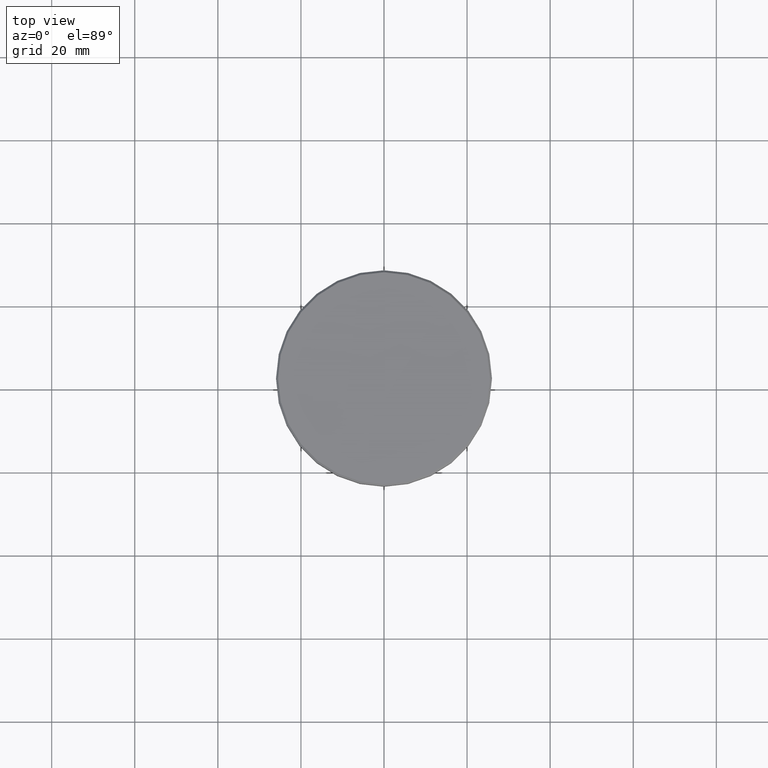
[diagram: clean part render]
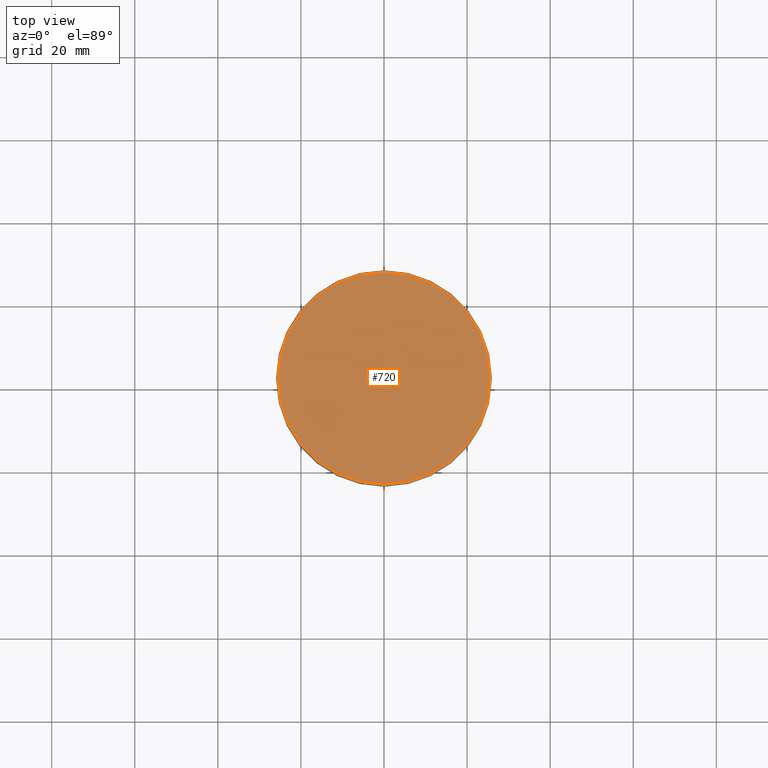
[diagram: same view with one face highlighted and labeled with its STEP entity id]
A machine part, top view. The second image highlights one B-rep face of the part: STEP entity #720.
In plain terms, the highlighted planar face has unit normal (0, -0, 1).
Its self-contained STEP definition (entity closure, byte-faithful):
#28 = AXIS2_PLACEMENT_3D ( 'NONE', #360, #500, #925 ) ;
#191 = ORIENTED_EDGE ( 'NONE', *, *, #1099, .T. ) ;
#360 = CARTESIAN_POINT ( 'NONE',  ( 0.000000000000000000, 0.000000000000000000, 0.000000000000000000 ) ) ;
#423 = DIRECTION ( 'NONE',  ( 1.000000000000000000, 0.000000000000000000, 0.000000000000000000 ) ) ;
#429 = DIRECTION ( 'NONE',  ( 1.000000000000000000, 0.000000000000000000, 0.000000000000000000 ) ) ;
#443 = FACE_OUTER_BOUND ( 'NONE', #780, .T. ) ;
#500 = DIRECTION ( 'NONE',  ( -0.000000000000000000, -0.000000000000000000, 1.000000000000000000 ) ) ;
#551 = VERTEX_POINT ( 'NONE', #690 ) ;
#562 = AXIS2_PLACEMENT_3D ( 'NONE', #783, #1072, #429 ) ;
#626 = PLANE ( 'NONE',  #1148 ) ;
#683 = ORIENTED_EDGE ( 'NONE', *, *, #892, .T. ) ;
#690 = CARTESIAN_POINT ( 'NONE',  ( -25.50000000000000000, 0.000000000000000000, 0.000000000000000000 ) ) ;
#720 = ADVANCED_FACE ( 'NONE', ( #443 ), #626, .T. ) ;
#772 = VERTEX_POINT ( 'NONE', #937 ) ;
#780 = EDGE_LOOP ( 'NONE', ( #683, #191 ) ) ;
#783 = CARTESIAN_POINT ( 'NONE',  ( 0.000000000000000000, 0.000000000000000000, 0.000000000000000000 ) ) ;
#892 = EDGE_CURVE ( 'NONE', #551, #772, #1046, .T. ) ;
#925 = DIRECTION ( 'NONE',  ( 1.000000000000000000, 0.000000000000000000, 0.000000000000000000 ) ) ;
#937 = CARTESIAN_POINT ( 'NONE',  ( 25.50000000000000000, 3.153465507804434404E-15, 0.000000000000000000 ) ) ;
#973 = CIRCLE ( 'NONE', #28, 25.50000000000000000 ) ;
#977 = CARTESIAN_POINT ( 'NONE',  ( 0.000000000000000000, 0.000000000000000000, 0.000000000000000000 ) ) ;
#1046 = CIRCLE ( 'NONE', #562, 25.50000000000000000 ) ;
#1072 = DIRECTION ( 'NONE',  ( -0.000000000000000000, -0.000000000000000000, 1.000000000000000000 ) ) ;
#1099 = EDGE_CURVE ( 'NONE', #772, #551, #973, .T. ) ;
#1148 = AXIS2_PLACEMENT_3D ( 'NONE', #977, #1173, #423 ) ;
#1173 = DIRECTION ( 'NONE',  ( 0.000000000000000000, -0.000000000000000000, 1.000000000000000000 ) ) ;